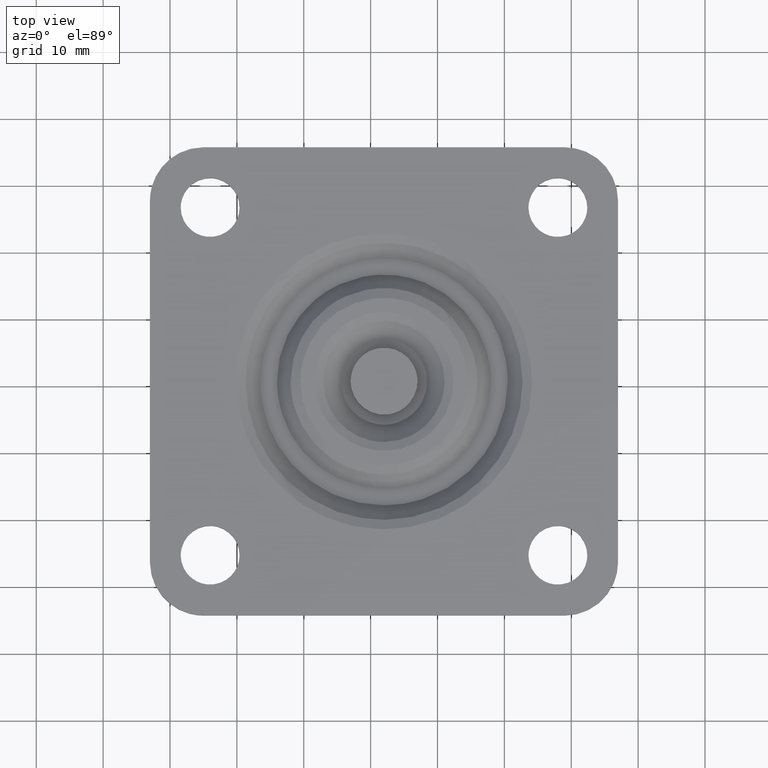
[diagram: clean part render]
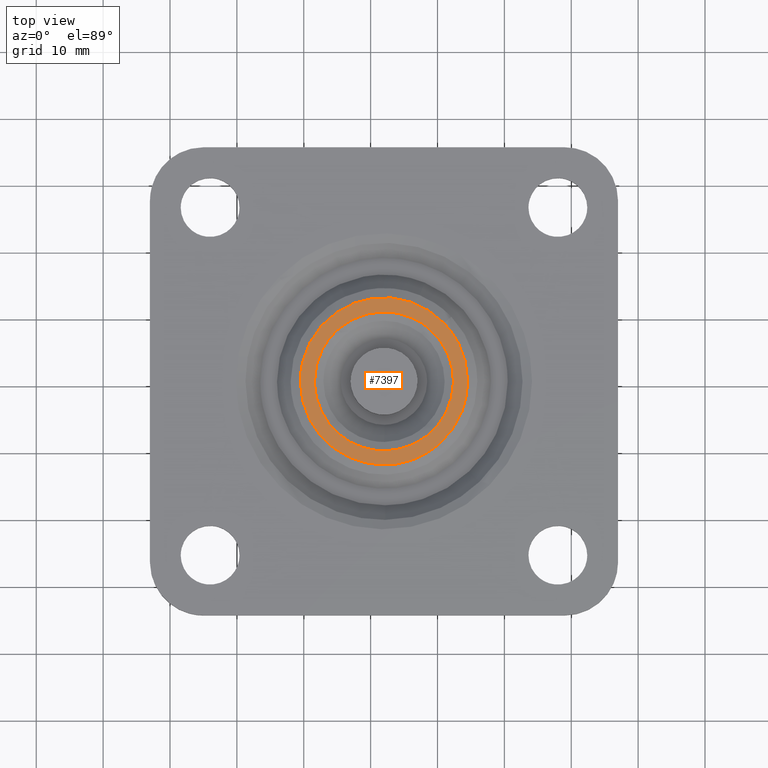
[diagram: same view with one face highlighted and labeled with its STEP entity id]
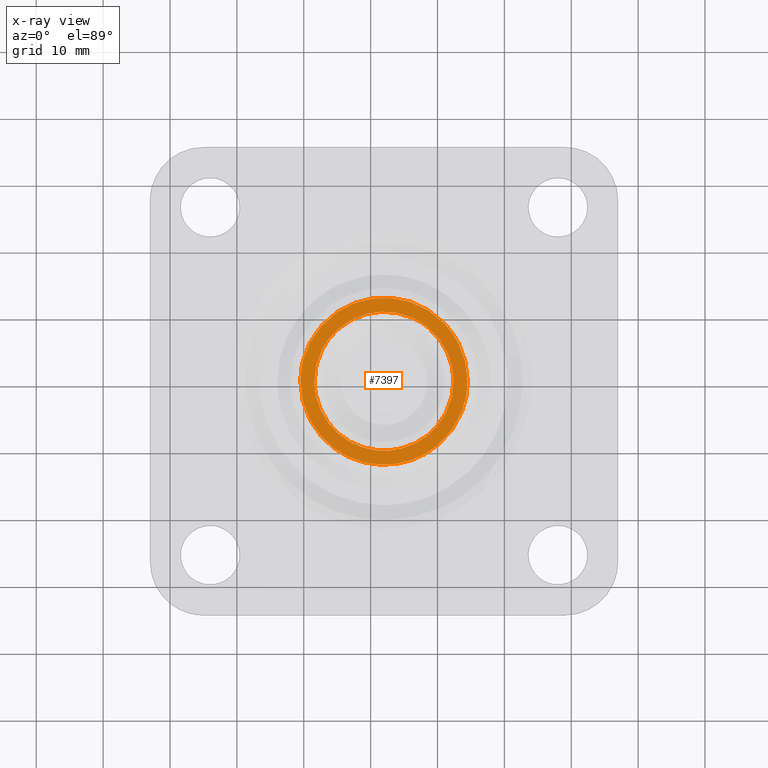
[diagram: x-ray of the same camera — body ghosted, the highlighted face saturated]
A machine part, top view. The second image highlights one B-rep face of the part: STEP entity #7397.
The next image is the same camera in x-ray: the body ghosted, the highlighted face saturated — about 0% of this face is hidden behind the body in this view.
In plain terms, the highlighted face is a freeform B-spline surface patch.
Its self-contained STEP definition (entity closure, byte-faithful):
#6558=CARTESIAN_POINT('',(-0.501157593769541,0.0,30.500000000000000));
#6559=VERTEX_POINT('',#6558);
#6560=CARTESIAN_POINT('',(20.142276395163439,-9.485898815815759,30.500000000000000));
#6561=VERTEX_POINT('',#6560);
#6562=CARTESIAN_POINT('',(-0.501157593769541,0.0,30.500000000000000));
#6563=CARTESIAN_POINT('',(-0.501157593769539,-12.501157593769541,30.499999999999996));
#6564=CARTESIAN_POINT('',(12.0,-12.501157593769539,30.500000000000000));
#6565=CARTESIAN_POINT('',(16.629445546601399,-12.501157593769539,30.500000000000000));
#6566=CARTESIAN_POINT('',(20.142276395163442,-9.485898815815759,30.499999999999996));
#6574=(BOUNDED_CURVE()B_SPLINE_CURVE(2,(#6562,#6563,#6564,#6565,#6566),.UNSPECIFIED.,.F.,.U.)B_SPLINE_CURVE_WITH_KNOTS((3,2,3),(0.0,0.250000000000000,0.363515920342734),.UNSPECIFIED.)CURVE()GEOMETRIC_REPRESENTATION_ITEM()RATIONAL_B_SPLINE_CURVE((1.0,0.707106781186548,1.0,0.867007826816980,0.854789485131967))REPRESENTATION_ITEM(''));
#6575=EDGE_CURVE('',#6559,#6561,#6574,.T.);
#6577=CARTESIAN_POINT('',(21.004696636508680,8.671469291569636,30.500000000000000));
#6578=VERTEX_POINT('',#6577);
#6579=CARTESIAN_POINT('',(21.004696636508672,8.671469291569636,30.499999999999996));
#6580=CARTESIAN_POINT('',(17.316729584167287,12.501157593769543,30.500000000000000));
#6581=CARTESIAN_POINT('',(12.0,12.501157593769539,30.500000000000000));
#6582=CARTESIAN_POINT('',(-0.501157593769539,12.501157593769541,30.499999999999996));
#6583=CARTESIAN_POINT('',(-0.501157593769541,0.0,30.500000000000000));
#6591=(BOUNDED_CURVE()B_SPLINE_CURVE(2,(#6579,#6580,#6581,#6582,#6583),.UNSPECIFIED.,.F.,.U.)B_SPLINE_CURVE_WITH_KNOTS((3,2,3),(0.622155737437363,0.750000000000000,1.0),.UNSPECIFIED.)CURVE()GEOMETRIC_REPRESENTATION_ITEM()RATIONAL_B_SPLINE_CURVE((0.853629213191971,0.850221129724789,1.0,0.707106781186548,1.0))REPRESENTATION_ITEM(''));
#6592=EDGE_CURVE('',#6578,#6559,#6591,.T.);
#6650=CARTESIAN_POINT('',(24.501157593769548,0.0,30.500000000000000));
#6651=VERTEX_POINT('',#6650);
#6652=CARTESIAN_POINT('',(20.142276395163442,-9.485898815815759,30.499999999999996));
#6653=CARTESIAN_POINT('',(24.501157593769545,-5.744427795569858,30.500000000000007));
#6654=CARTESIAN_POINT('',(24.501157593769548,0.0,30.500000000000000));
#6662=(BOUNDED_CURVE()B_SPLINE_CURVE(2,(#6652,#6653,#6654),.UNSPECIFIED.,.F.,.U.)B_SPLINE_CURVE_WITH_KNOTS((3,3),(0.363515920342734,0.500000000000000),.UNSPECIFIED.)CURVE()GEOMETRIC_REPRESENTATION_ITEM()RATIONAL_B_SPLINE_CURVE((0.854789485131967,0.840098954369567,1.0))REPRESENTATION_ITEM(''));
#6663=EDGE_CURVE('',#6561,#6651,#6662,.T.);
#6669=CARTESIAN_POINT('',(24.501157593769548,0.0,30.500000000000000));
#6670=CARTESIAN_POINT('',(24.501157593769545,5.040646282705340,30.499999999999993));
#6671=CARTESIAN_POINT('',(21.004696636508672,8.671469291569636,30.499999999999996));
#6679=(BOUNDED_CURVE()B_SPLINE_CURVE(2,(#6669,#6670,#6671),.UNSPECIFIED.,.F.,.U.)B_SPLINE_CURVE_WITH_KNOTS((3,3),(0.500000000000000,0.622155737437364),.UNSPECIFIED.)CURVE()GEOMETRIC_REPRESENTATION_ITEM()RATIONAL_B_SPLINE_CURVE((1.0,0.856885651461758,0.853629213191971))REPRESENTATION_ITEM(''));
#6680=EDGE_CURVE('',#6651,#6578,#6679,.T.);
#6720=CARTESIAN_POINT('',(18.423765021665758,8.166596467913834,30.500000000000000));
#6721=VERTEX_POINT('',#6720);
#6722=CARTESIAN_POINT('',(22.390286546292440,0.0,30.500000000000000));
#6723=VERTEX_POINT('',#6722);
#6724=CARTESIAN_POINT('',(18.423765021665755,8.166596467913834,30.500000000000000));
#6725=CARTESIAN_POINT('',(22.390286546292440,5.046569349504455,30.500000000000000));
#6726=CARTESIAN_POINT('',(22.390286546292440,0.0,30.500000000000000));
#6734=(BOUNDED_CURVE()B_SPLINE_CURVE(2,(#6724,#6725,#6726),.UNSPECIFIED.,.F.,.U.)B_SPLINE_CURVE_WITH_KNOTS((3,3),(0.357040093256796,0.500000000000000),.UNSPECIFIED.)CURVE()GEOMETRIC_REPRESENTATION_ITEM()RATIONAL_B_SPLINE_CURVE((0.856576594566493,0.832512051010848,1.0))REPRESENTATION_ITEM(''));
#6735=EDGE_CURVE('',#6721,#6723,#6734,.T.);
#6755=CARTESIAN_POINT('',(5.079945854222348,7.750542247512177,30.500000000000000));
#6756=VERTEX_POINT('',#6755);
#6770=CARTESIAN_POINT('',(1.609713453707560,0.0,30.500000000000000));
#6771=VERTEX_POINT('',#6770);
#6772=CARTESIAN_POINT('',(1.609713453707560,0.0,30.500000000000000));
#6773=CARTESIAN_POINT('',(1.609713453707560,4.652153084331217,30.499999999999996));
#6774=CARTESIAN_POINT('',(5.079945854222348,7.750542247512177,30.500000000000000));
#6782=(BOUNDED_CURVE()B_SPLINE_CURVE(2,(#6772,#6773,#6774),.UNSPECIFIED.,.F.,.U.)B_SPLINE_CURVE_WITH_KNOTS((3,3),(0.0,0.133534809512016),.UNSPECIFIED.)CURVE()GEOMETRIC_REPRESENTATION_ITEM()RATIONAL_B_SPLINE_CURVE((1.0,0.843554239273537,0.854236117407640))REPRESENTATION_ITEM(''));
#6783=EDGE_CURVE('',#6771,#6756,#6782,.T.);
#6785=CARTESIAN_POINT('',(22.390286546292440,0.0,30.500000000000000));
#6786=CARTESIAN_POINT('',(22.390286546292444,-10.390286546292440,30.499999999999996));
#6787=CARTESIAN_POINT('',(12.0,-10.390286546292440,30.500000000000000));
#6788=CARTESIAN_POINT('',(1.609713453707560,-10.390286546292440,30.499999999999996));
#6789=CARTESIAN_POINT('',(1.609713453707560,0.0,30.500000000000000));
#6797=(BOUNDED_CURVE()B_SPLINE_CURVE(2,(#6785,#6786,#6787,#6788,#6789),.UNSPECIFIED.,.F.,.U.)B_SPLINE_CURVE_WITH_KNOTS((3,2,3),(0.500000000000000,0.750000000000000,1.0),.UNSPECIFIED.)CURVE()GEOMETRIC_REPRESENTATION_ITEM()RATIONAL_B_SPLINE_CURVE((1.0,0.707106781186548,1.0,0.707106781186548,1.0))REPRESENTATION_ITEM(''));
#6798=EDGE_CURVE('',#6723,#6771,#6797,.T.);
#6820=CARTESIAN_POINT('',(5.079945854222348,7.750542247512176,30.500000000000004));
#6821=CARTESIAN_POINT('',(8.036490597624269,10.390286546292442,30.500000000000007));
#6822=CARTESIAN_POINT('',(12.0,10.390286546292440,30.500000000000000));
#6823=CARTESIAN_POINT('',(15.596765641382673,10.390286546292440,30.500000000000004));
#6824=CARTESIAN_POINT('',(18.423765021665755,8.166596467913834,30.500000000000000));
#6832=(BOUNDED_CURVE()B_SPLINE_CURVE(2,(#6820,#6821,#6822,#6823,#6824),.UNSPECIFIED.,.F.,.U.)B_SPLINE_CURVE_WITH_KNOTS((3,2,3),(0.133534809512016,0.250000000000000,0.357040093256796),.UNSPECIFIED.)CURVE()GEOMETRIC_REPRESENTATION_ITEM()RATIONAL_B_SPLINE_CURVE((0.854236117407640,0.863552541913010,1.0,0.874594730175700,0.856576594566493))REPRESENTATION_ITEM(''));
#6833=EDGE_CURVE('',#6756,#6721,#6832,.T.);
#7380=CARTESIAN_POINT('',(-1.750023188927779,13.748787478906950,30.500000000000000));
#7381=CARTESIAN_POINT('',(25.750023859542139,13.748787478906950,30.500000000000000));
#7382=CARTESIAN_POINT('',(-1.750023188927779,-13.745777277494920,30.500000000000000));
#7383=CARTESIAN_POINT('',(25.750023859542139,-13.745777277494920,30.500000000000000));
#7384=B_SPLINE_SURFACE_WITH_KNOTS('',1,1,((#7380,#7382),(#7381,#7383)),.UNSPECIFIED.,.F.,.F.,.U.,(2,2),(2,2),(0.0,27.500047048469920),(0.0,27.494564756401861),.UNSPECIFIED.);
#7385=ORIENTED_EDGE('',*,*,#6663,.T.);
#7386=ORIENTED_EDGE('',*,*,#6680,.T.);
#7387=ORIENTED_EDGE('',*,*,#6592,.T.);
#7388=ORIENTED_EDGE('',*,*,#6575,.T.);
#7389=EDGE_LOOP('',(#7385,#7386,#7387,#7388));
#7390=FACE_OUTER_BOUND('',#7389,.T.);
#7391=ORIENTED_EDGE('',*,*,#6798,.T.);
#7392=ORIENTED_EDGE('',*,*,#6783,.T.);
#7393=ORIENTED_EDGE('',*,*,#6833,.T.);
#7394=ORIENTED_EDGE('',*,*,#6735,.T.);
#7395=EDGE_LOOP('',(#7391,#7392,#7393,#7394));
#7396=FACE_BOUND('',#7395,.T.);
#7397=ADVANCED_FACE('',(#7390,#7396),#7384,.F.);